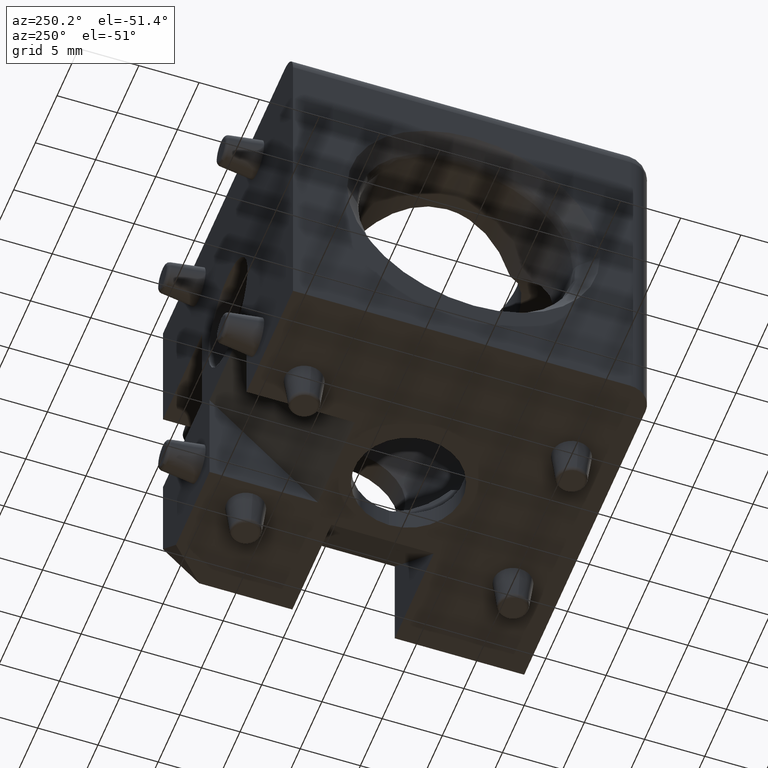
[diagram: clean part render]
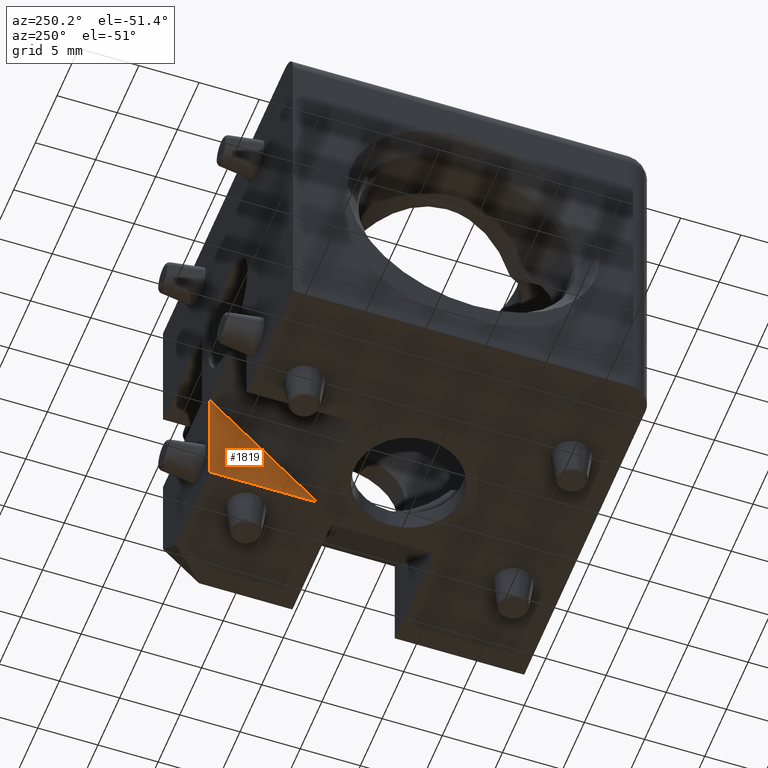
[diagram: same view with one face highlighted and labeled with its STEP entity id]
A machine part, auxiliary view. The second image highlights one B-rep face of the part: STEP entity #1819.
In plain terms, the highlighted planar face has unit normal (1, 0, 0).
Its self-contained STEP definition (entity closure, byte-faithful):
#54=PLANE('',#2083);
#157=LINE('',#3307,#256);
#160=LINE('',#3319,#259);
#184=LINE('',#3577,#283);
#256=VECTOR('',#2459,9.);
#259=VECTOR('',#2474,9.);
#283=VECTOR('',#2686,12.7279220613579);
#439=FACE_OUTER_BOUND('',#573,.T.);
#573=EDGE_LOOP('',(#1636,#1637,#1638));
#858=VERTEX_POINT('',#3281);
#870=VERTEX_POINT('',#3305);
#873=VERTEX_POINT('',#3318);
#1075=EDGE_CURVE('',#870,#858,#157,.T.);
#1083=EDGE_CURVE('',#858,#873,#160,.T.);
#1151=EDGE_CURVE('',#873,#870,#184,.T.);
#1636=ORIENTED_EDGE('',*,*,#1083,.F.);
#1637=ORIENTED_EDGE('',*,*,#1075,.F.);
#1638=ORIENTED_EDGE('',*,*,#1151,.F.);
#1819=ADVANCED_FACE('',(#439),#54,.F.);
#2083=AXIS2_PLACEMENT_3D('',#3580,#2690,#2691);
#2459=DIRECTION('',(0.,1.,0.));
#2474=DIRECTION('',(0.,0.,1.));
#2686=DIRECTION('',(0.,-0.707106781186548,-0.707106781186548));
#2690=DIRECTION('center_axis',(1.,0.,0.));
#2691=DIRECTION('ref_axis',(0.,1.,0.));
#3281=CARTESIAN_POINT('',(4.25,15.,-15.));
#3305=CARTESIAN_POINT('',(4.25,6.,-15.));
#3307=CARTESIAN_POINT('',(4.25,6.,-15.));
#3318=CARTESIAN_POINT('',(4.25,15.,-6.));
#3319=CARTESIAN_POINT('',(4.25,15.,-6.));
#3577=CARTESIAN_POINT('',(4.25,15.,-6.));
#3580=CARTESIAN_POINT('Origin',(4.25,15.,-15.));